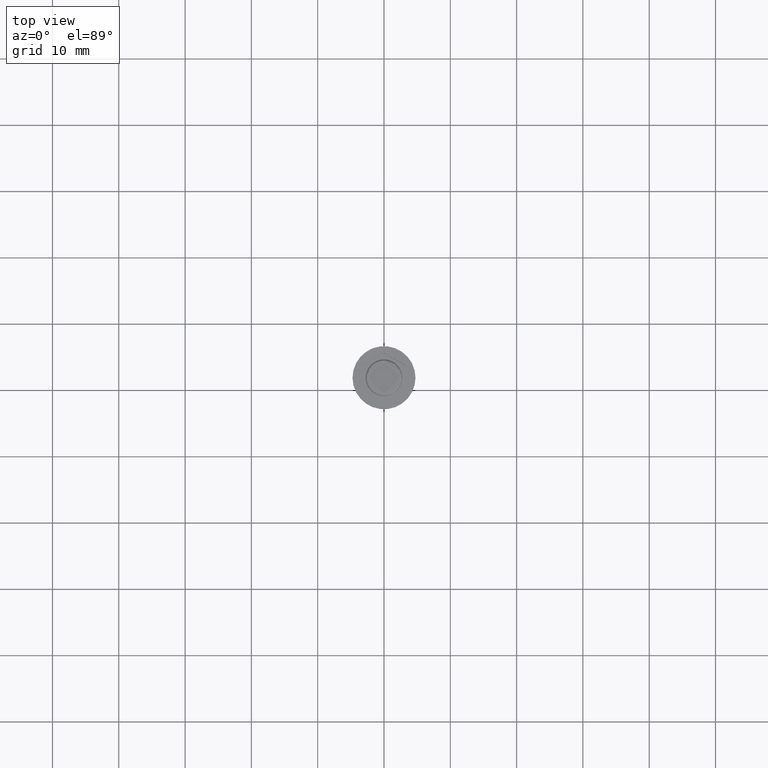
[diagram: clean part render]
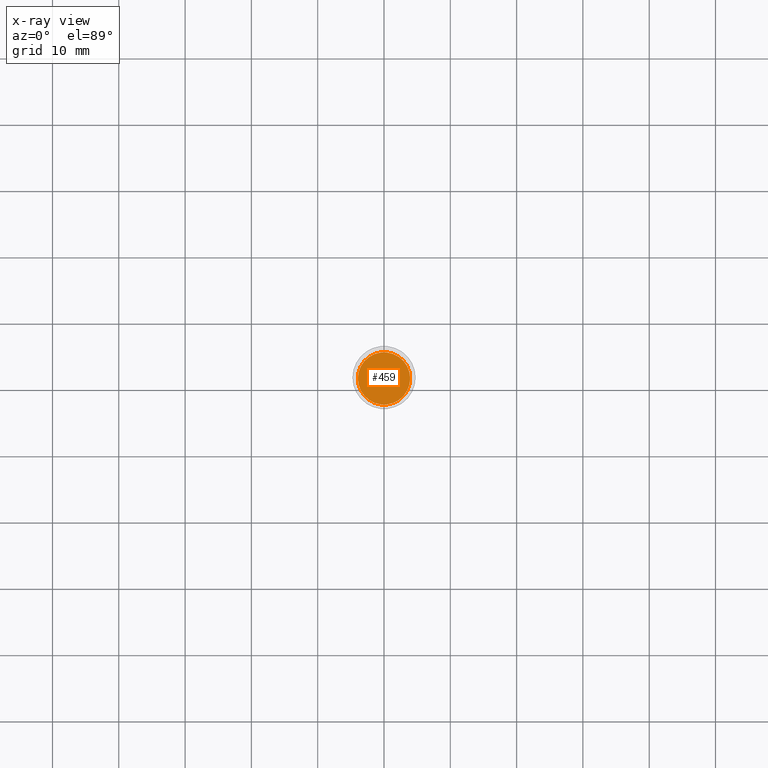
[diagram: x-ray — body ghosted, one internal face saturated and labeled with its STEP entity id]
A machine part, top view, then the same camera in x-ray: the body is ghosted and one INTERNAL B-rep face — a face not visible from any outside direction — is saturated and labeled: STEP entity #459.
In plain terms, the highlighted planar face has unit normal (0, 0, -1).
Its self-contained STEP definition (entity closure, byte-faithful):
#9 = CARTESIAN_POINT ( 'NONE',  ( 3.950000000000001066, 5.021051876504150343E-16, -7.500000000000000000 ) ) ;
#126 = EDGE_LOOP ( 'NONE', ( #1506, #1321 ) ) ;
#141 = DIRECTION ( 'NONE',  ( -1.000000000000000000, 0.000000000000000000, -0.000000000000000000 ) ) ;
#223 = DIRECTION ( 'NONE',  ( -1.000000000000000000, 0.000000000000000000, 0.000000000000000000 ) ) ;
#356 = EDGE_CURVE ( 'NONE', #977, #716, #1587, .T. ) ;
#367 = EDGE_CURVE ( 'NONE', #716, #977, #662, .T. ) ;
#459 = ADVANCED_FACE ( 'NONE', ( #2114 ), #1405, .F. ) ;
#510 = AXIS2_PLACEMENT_3D ( 'NONE', #1948, #1913, #141 ) ;
#581 = DIRECTION ( 'NONE',  ( -0.000000000000000000, -0.000000000000000000, 1.000000000000000000 ) ) ;
#603 = CARTESIAN_POINT ( 'NONE',  ( 0.000000000000000000, 0.000000000000000000, -7.500000000000000000 ) ) ;
#662 = CIRCLE ( 'NONE', #739, 3.950000000000001066 ) ;
#716 = VERTEX_POINT ( 'NONE', #1705 ) ;
#739 = AXIS2_PLACEMENT_3D ( 'NONE', #603, #1345, #2076 ) ;
#977 = VERTEX_POINT ( 'NONE', #9 ) ;
#1321 = ORIENTED_EDGE ( 'NONE', *, *, #356, .T. ) ;
#1345 = DIRECTION ( 'NONE',  ( -0.000000000000000000, -0.000000000000000000, 1.000000000000000000 ) ) ;
#1405 = PLANE ( 'NONE',  #510 ) ;
#1506 = ORIENTED_EDGE ( 'NONE', *, *, #367, .T. ) ;
#1587 = CIRCLE ( 'NONE', #1625, 3.950000000000001066 ) ;
#1625 = AXIS2_PLACEMENT_3D ( 'NONE', #2240, #581, #223 ) ;
#1705 = CARTESIAN_POINT ( 'NONE',  ( -3.950000000000001066, 0.000000000000000000, -7.500000000000000000 ) ) ;
#1913 = DIRECTION ( 'NONE',  ( 0.000000000000000000, 0.000000000000000000, -1.000000000000000000 ) ) ;
#1948 = CARTESIAN_POINT ( 'NONE',  ( 0.000000000000000000, 0.000000000000000000, -7.500000000000000000 ) ) ;
#2076 = DIRECTION ( 'NONE',  ( -1.000000000000000000, 0.000000000000000000, 0.000000000000000000 ) ) ;
#2114 = FACE_OUTER_BOUND ( 'NONE', #126, .T. ) ;
#2240 = CARTESIAN_POINT ( 'NONE',  ( 0.000000000000000000, 0.000000000000000000, -7.500000000000000000 ) ) ;